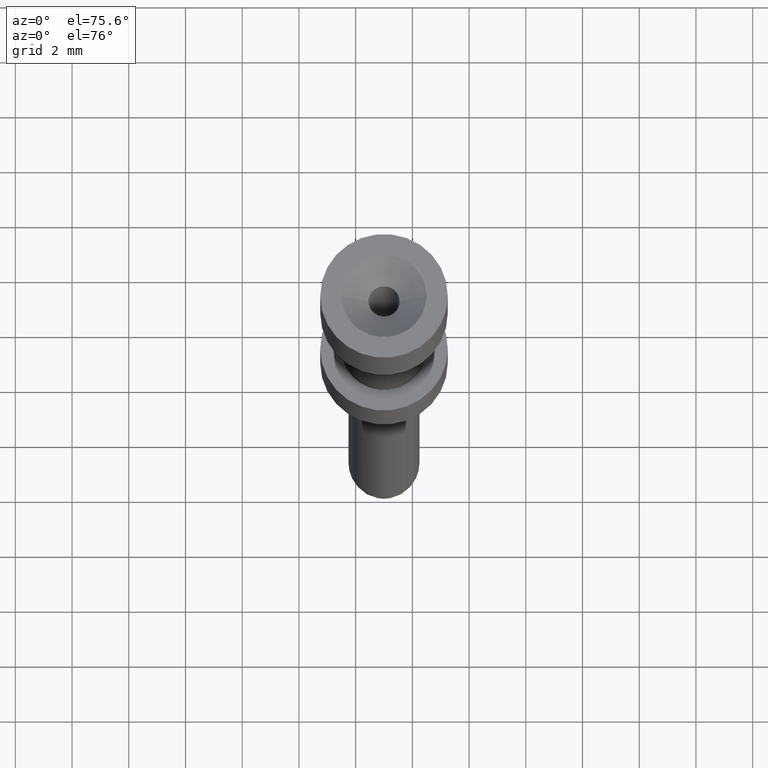
[diagram: clean part render]
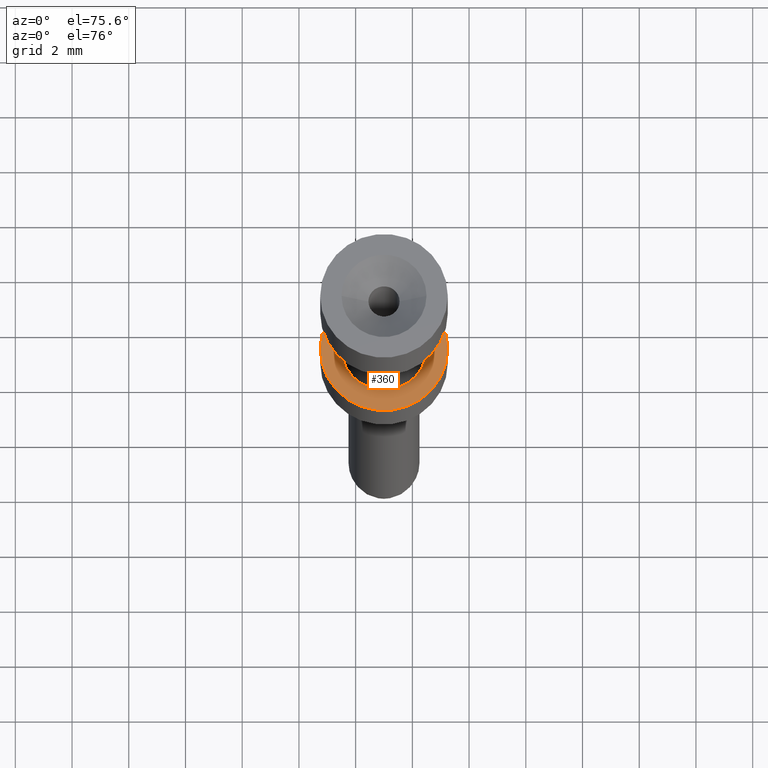
[diagram: same view with one face highlighted and labeled with its STEP entity id]
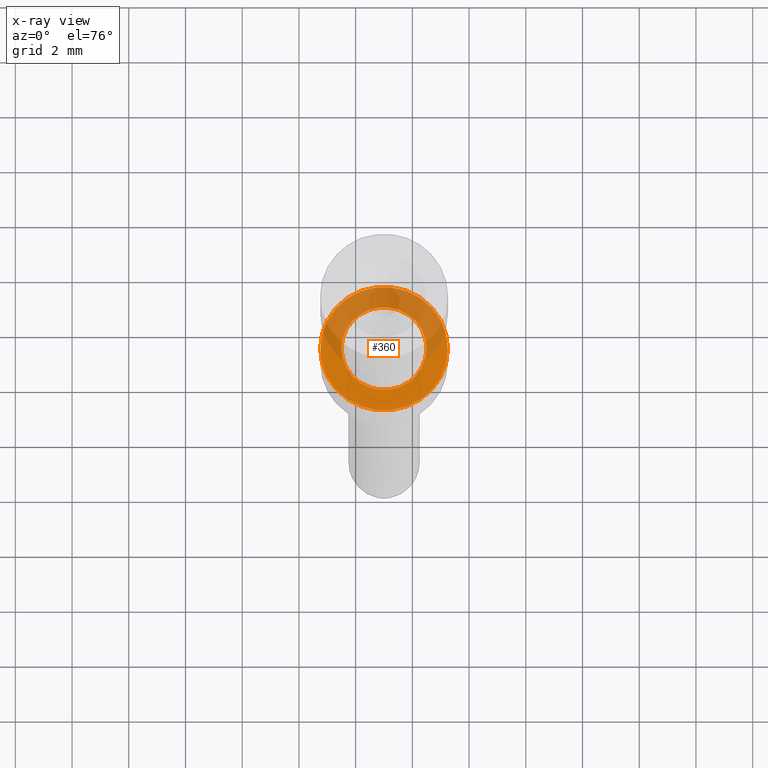
[diagram: x-ray of the same camera — body ghosted, the highlighted face saturated]
A machine part, auxiliary view. The second image highlights one B-rep face of the part: STEP entity #360.
The next image is the same camera in x-ray: the body ghosted, the highlighted face saturated — about 49% of this face is hidden behind the body in this view.
In plain terms, the highlighted planar face has unit normal (0, 0, -1).
Its self-contained STEP definition (entity closure, byte-faithful):
#10=CARTESIAN_POINT('',(31.1869705,72.157183,-6.6));
#20=DIRECTION('',(-0.,1.,1.83697019872103E-16));
#30=DIRECTION('',(1.,0.,0.));
#40=AXIS2_PLACEMENT_3D('',#10,#20,#30);
#50=PLANE('',#40);
#60=CARTESIAN_POINT('',(33.587952,72.157183,-6.6));
#70=DIRECTION('',(0.,1.,1.83697019872103E-16));
#80=DIRECTION('',(1.,0.,0.));
#90=AXIS2_PLACEMENT_3D('',#60,#70,#80);
#100=CIRCLE('',#90,1.5);
#110=CARTESIAN_POINT('',(32.087952,72.157183,-6.6));
#120=VERTEX_POINT('',#110);
#130=CARTESIAN_POINT('',(35.087952,72.157183,-6.6));
#140=VERTEX_POINT('',#130);
#150=EDGE_CURVE('',#120,#140,#100,.T.);
#160=ORIENTED_EDGE('',*,*,#150,.T.);
#170=EDGE_CURVE('',#140,#120,#100,.T.);
#180=ORIENTED_EDGE('',*,*,#170,.T.);
#190=EDGE_LOOP('',(#180,#160));
#200=FACE_BOUND('',#190,.T.);
#210=CARTESIAN_POINT('',(33.587952,72.157183,-6.59999999999999));
#220=DIRECTION('',(0.,-1.,-1.83697019872103E-16));
#230=DIRECTION('',(1.,0.,0.));
#240=AXIS2_PLACEMENT_3D('',#210,#220,#230);
#250=CIRCLE('',#240,2.25);
#260=CARTESIAN_POINT('',(35.837952,72.157183,-6.59999999999999));
#270=VERTEX_POINT('',#260);
#280=CARTESIAN_POINT('',(31.337952,72.157183,-6.59999999999999));
#290=VERTEX_POINT('',#280);
#300=EDGE_CURVE('',#270,#290,#250,.T.);
#310=ORIENTED_EDGE('',*,*,#300,.T.);
#320=EDGE_CURVE('',#290,#270,#250,.T.);
#330=ORIENTED_EDGE('',*,*,#320,.T.);
#340=EDGE_LOOP('',(#330,#310));
#350=FACE_OUTER_BOUND('',#340,.T.);
#360=ADVANCED_FACE('',(#200,#350),#50,.F.);